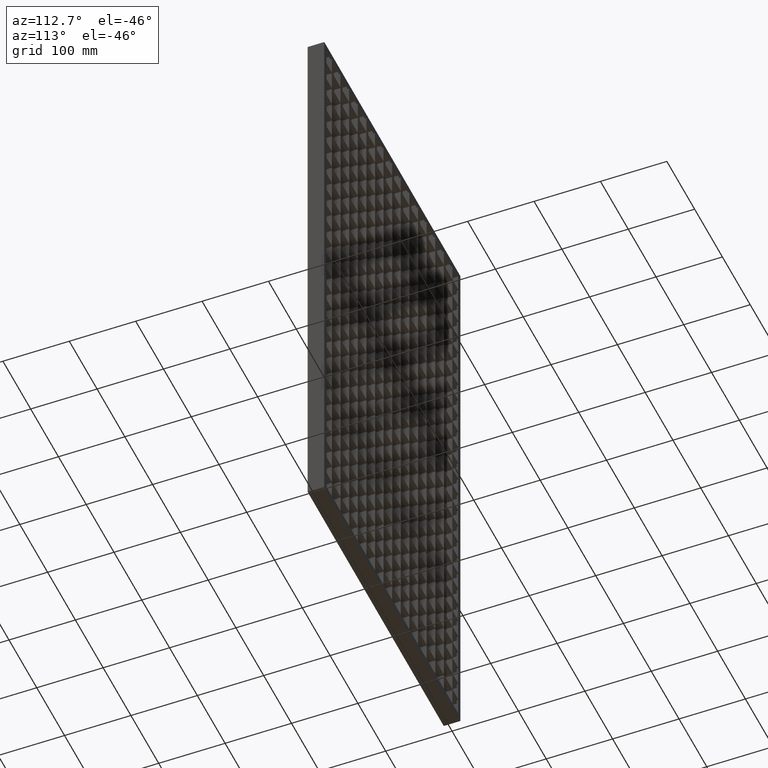
[diagram: clean part render]
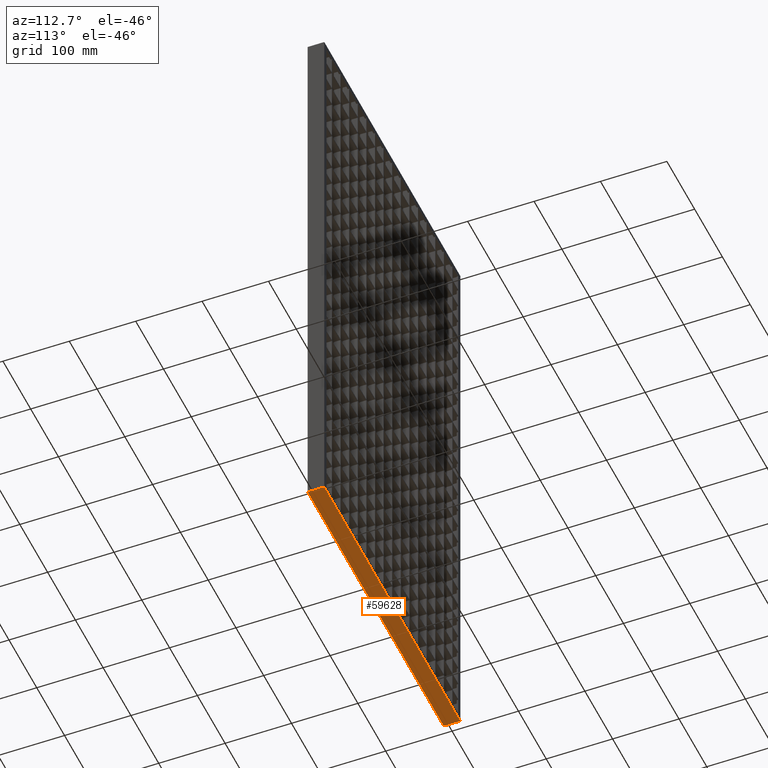
[diagram: same view with one face highlighted and labeled with its STEP entity id]
A machine part, auxiliary view. The second image highlights one B-rep face of the part: STEP entity #59628.
In plain terms, the highlighted planar face has unit normal (-0, 0, 1).
Its self-contained STEP definition (entity closure, byte-faithful):
#570 = VERTEX_POINT ( 'NONE', #50616 ) ;
#1603 = CARTESIAN_POINT ( 'NONE',  ( 489.9999999999999400, 12.49999999999986700, -890.0000000000000000 ) ) ;
#3951 = VECTOR ( 'NONE', #46700, 1000.000000000000000 ) ;
#8172 = DIRECTION ( 'NONE',  ( -0.0000000000000000000, 3.061616997868383100E-016, 1.000000000000000000 ) ) ;
#13010 = DIRECTION ( 'NONE',  ( 0.0000000000000000000, -1.000000000000000000, 3.061616997868383100E-016 ) ) ;
#13945 = DIRECTION ( 'NONE',  ( 1.000000000000000000, 0.0000000000000000000, 0.0000000000000000000 ) ) ;
#14169 = LINE ( 'NONE', #19155, #42926 ) ;
#14522 = LINE ( 'NONE', #1603, #3951 ) ;
#15614 = ORIENTED_EDGE ( 'NONE', *, *, #62656, .T. ) ;
#16358 = VERTEX_POINT ( 'NONE', #25079 ) ;
#18070 = DIRECTION ( 'NONE',  ( 3.061616997868383100E-016, -1.000000000000000000, 3.061616997868383100E-016 ) ) ;
#18481 = CARTESIAN_POINT ( 'NONE',  ( -4.898587196589417800E-015, 12.50000000000001600, -890.0000000000000000 ) ) ;
#18958 = AXIS2_PLACEMENT_3D ( 'NONE', #31673, #8172, #13010 ) ;
#19155 = CARTESIAN_POINT ( 'NONE',  ( 2.755455298081544800E-015, -12.50000000000000000, -890.0000000000000000 ) ) ;
#21778 = LINE ( 'NONE', #18481, #58902 ) ;
#25079 = CARTESIAN_POINT ( 'NONE',  ( -4.898587196589413000E-015, 12.50000000000000000, -890.0000000000000000 ) ) ;
#28739 = CARTESIAN_POINT ( 'NONE',  ( 2.755455298081544800E-015, -12.50000000000000000, -890.0000000000000000 ) ) ;
#31311 = EDGE_CURVE ( 'NONE', #16358, #59225, #21778, .T. ) ;
#31673 = CARTESIAN_POINT ( 'NONE',  ( -4.898587196589417800E-015, 12.50000000000001600, -890.0000000000000000 ) ) ;
#33138 = LINE ( 'NONE', #62394, #45937 ) ;
#37161 = PLANE ( 'NONE',  #18958 ) ;
#37604 = VERTEX_POINT ( 'NONE', #54976 ) ;
#38787 = EDGE_CURVE ( 'NONE', #570, #37604, #14522, .T. ) ;
#39381 = ORIENTED_EDGE ( 'NONE', *, *, #55528, .F. ) ;
#39410 = ORIENTED_EDGE ( 'NONE', *, *, #38787, .F. ) ;
#42926 = VECTOR ( 'NONE', #43438, 1000.000000000000000 ) ;
#43438 = DIRECTION ( 'NONE',  ( 1.000000000000000000, 0.0000000000000000000, 0.0000000000000000000 ) ) ;
#45937 = VECTOR ( 'NONE', #13945, 1000.000000000000000 ) ;
#46700 = DIRECTION ( 'NONE',  ( 3.061616997868382600E-016, 1.000000000000000000, -3.061616997868383100E-016 ) ) ;
#47321 = EDGE_LOOP ( 'NONE', ( #39410, #39381, #57603, #15614 ) ) ;
#50616 = CARTESIAN_POINT ( 'NONE',  ( 490.0000000000000000, -12.50000000000000000, -890.0000000000000000 ) ) ;
#54976 = CARTESIAN_POINT ( 'NONE',  ( 490.0000000000000000, 12.50000000000000000, -890.0000000000000000 ) ) ;
#55528 = EDGE_CURVE ( 'NONE', #59225, #570, #14169, .T. ) ;
#57480 = FACE_OUTER_BOUND ( 'NONE', #47321, .T. ) ;
#57603 = ORIENTED_EDGE ( 'NONE', *, *, #31311, .F. ) ;
#58902 = VECTOR ( 'NONE', #18070, 1000.000000000000000 ) ;
#59225 = VERTEX_POINT ( 'NONE', #28739 ) ;
#59628 = ADVANCED_FACE ( 'NONE', ( #57480 ), #37161, .F. ) ;
#62394 = CARTESIAN_POINT ( 'NONE',  ( -4.898587196589413000E-015, 12.50000000000000000, -890.0000000000000000 ) ) ;
#62656 = EDGE_CURVE ( 'NONE', #16358, #37604, #33138, .T. ) ;